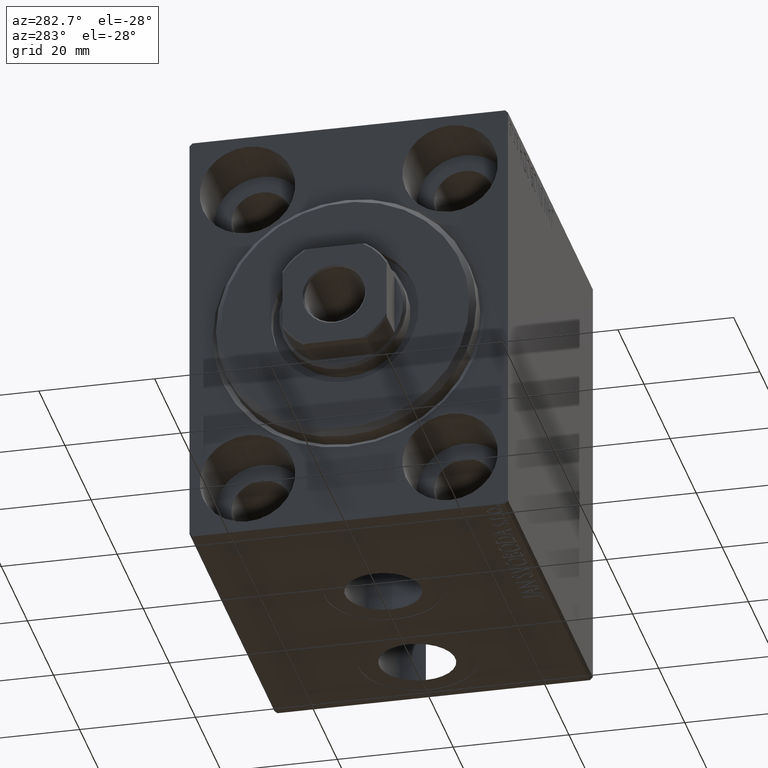
[diagram: clean part render]
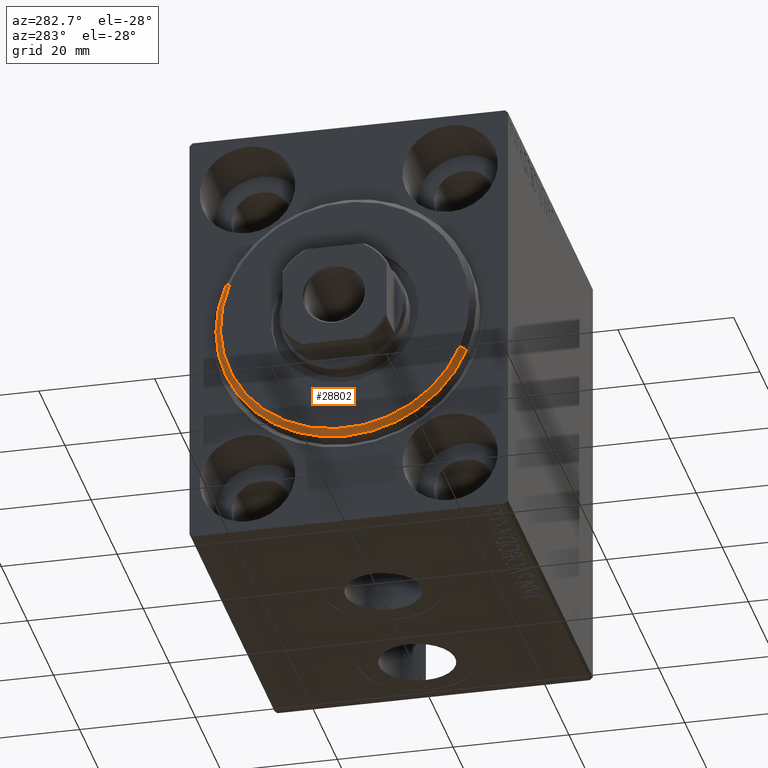
[diagram: same view with one face highlighted and labeled with its STEP entity id]
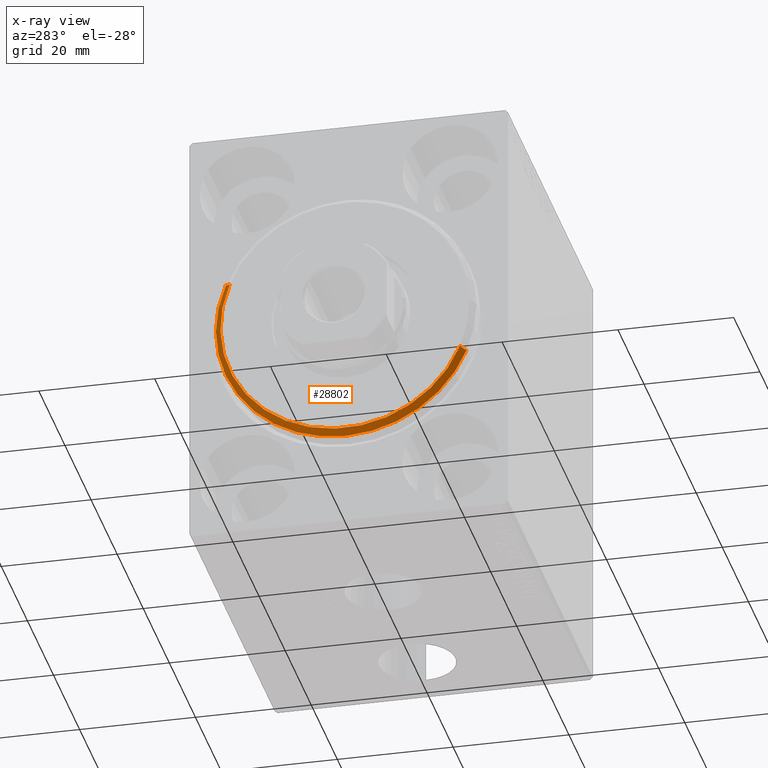
[diagram: x-ray of the same camera — body ghosted, the highlighted face saturated]
A machine part, auxiliary view. The second image highlights one B-rep face of the part: STEP entity #28802.
The next image is the same camera in x-ray: the body ghosted, the highlighted face saturated — about 0% of this face is hidden behind the body in this view.
In plain terms, the highlighted conical surface has half-angle 45 deg.
Its self-contained STEP definition (entity closure, byte-faithful):
#985 = VERTEX_POINT ( 'NONE', #6141 ) ;
#1562 = EDGE_LOOP ( 'NONE', ( #37138, #44689, #39290, #28724 ) ) ;
#2035 = CARTESIAN_POINT ( 'NONE',  ( 3.000000000000000000, 2.694222958124177598E-15, -21.50000000000000355 ) ) ;
#2554 = LINE ( 'NONE', #36574, #9258 ) ;
#6141 = CARTESIAN_POINT ( 'NONE',  ( 1.999999999999992228, 0.000000000000000000, 22.50000000000000355 ) ) ;
#7456 = CARTESIAN_POINT ( 'NONE',  ( 3.000000000000000000, 0.000000000000000000, 0.000000000000000000 ) ) ;
#9229 = VERTEX_POINT ( 'NONE', #35839 ) ;
#9258 = VECTOR ( 'NONE', #40873, 1000.000000000000000 ) ;
#9363 = VERTEX_POINT ( 'NONE', #2035 ) ;
#11023 = VERTEX_POINT ( 'NONE', #19000 ) ;
#15092 = VECTOR ( 'NONE', #27881, 1000.000000000000000 ) ;
#16759 = CARTESIAN_POINT ( 'NONE',  ( 3.000000000000000000, 0.000000000000000000, 0.000000000000000000 ) ) ;
#16816 = CARTESIAN_POINT ( 'NONE',  ( 1.999999999999992228, 0.000000000000000000, 0.000000000000000000 ) ) ;
#19000 = CARTESIAN_POINT ( 'NONE',  ( 3.000000000000000000, 0.000000000000000000, 21.50000000000000355 ) ) ;
#19074 = CIRCLE ( 'NONE', #29288, 21.50000000000000355 ) ;
#19540 = DIRECTION ( 'NONE',  ( 0.000000000000000000, 0.000000000000000000, -1.000000000000000000 ) ) ;
#20189 = CIRCLE ( 'NONE', #26735, 22.50000000000000355 ) ;
#23743 = EDGE_CURVE ( 'NONE', #985, #9229, #20189, .T. ) ;
#24312 = EDGE_CURVE ( 'NONE', #9363, #9229, #2554, .T. ) ;
#24421 = EDGE_CURVE ( 'NONE', #11023, #985, #27419, .T. ) ;
#26735 = AXIS2_PLACEMENT_3D ( 'NONE', #16816, #44167, #19540 ) ;
#27419 = LINE ( 'NONE', #38361, #15092 ) ;
#27548 = DIRECTION ( 'NONE',  ( 1.000000000000000000, -0.000000000000000000, 0.000000000000000000 ) ) ;
#27705 = DIRECTION ( 'NONE',  ( 0.000000000000000000, 0.000000000000000000, 1.000000000000000000 ) ) ;
#27881 = DIRECTION ( 'NONE',  ( -0.7071067811865512365, 0.000000000000000000, 0.7071067811865439090 ) ) ;
#28724 = ORIENTED_EDGE ( 'NONE', *, *, #24421, .F. ) ;
#28802 = ADVANCED_FACE ( 'NONE', ( #38412 ), #29806, .T. ) ;
#29288 = AXIS2_PLACEMENT_3D ( 'NONE', #7456, #27548, #41456 ) ;
#29806 = CONICAL_SURFACE ( 'NONE', #37080, 21.50000000000000355, 0.7853981633974431720 ) ;
#34776 = DIRECTION ( 'NONE',  ( -1.000000000000000000, 0.000000000000000000, 0.000000000000000000 ) ) ;
#35839 = CARTESIAN_POINT ( 'NONE',  ( 1.999999999999992228, 2.755455298081545172E-15, -22.50000000000000355 ) ) ;
#36574 = CARTESIAN_POINT ( 'NONE',  ( 3.000000000000000000, 2.632990618166810024E-15, -21.50000000000000355 ) ) ;
#37080 = AXIS2_PLACEMENT_3D ( 'NONE', #16759, #34776, #27705 ) ;
#37138 = ORIENTED_EDGE ( 'NONE', *, *, #42342, .F. ) ;
#38361 = CARTESIAN_POINT ( 'NONE',  ( 3.000000000000000000, 0.000000000000000000, 21.50000000000000355 ) ) ;
#38412 = FACE_OUTER_BOUND ( 'NONE', #1562, .T. ) ;
#39290 = ORIENTED_EDGE ( 'NONE', *, *, #23743, .F. ) ;
#40873 = DIRECTION ( 'NONE',  ( -0.7071067811865512365, 8.659560562354888485E-17, -0.7071067811865439090 ) ) ;
#41456 = DIRECTION ( 'NONE',  ( 0.000000000000000000, 0.000000000000000000, -1.000000000000000000 ) ) ;
#42342 = EDGE_CURVE ( 'NONE', #9363, #11023, #19074, .T. ) ;
#44167 = DIRECTION ( 'NONE',  ( -1.000000000000000000, 0.000000000000000000, 0.000000000000000000 ) ) ;
#44689 = ORIENTED_EDGE ( 'NONE', *, *, #24312, .T. ) ;